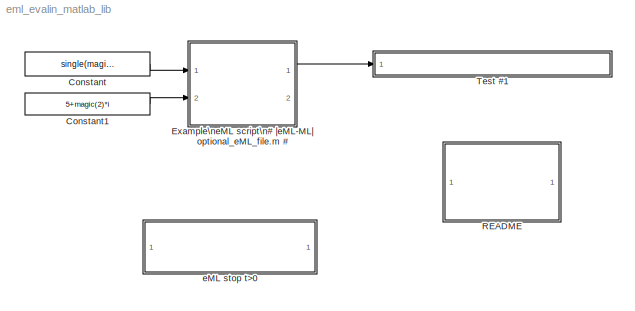
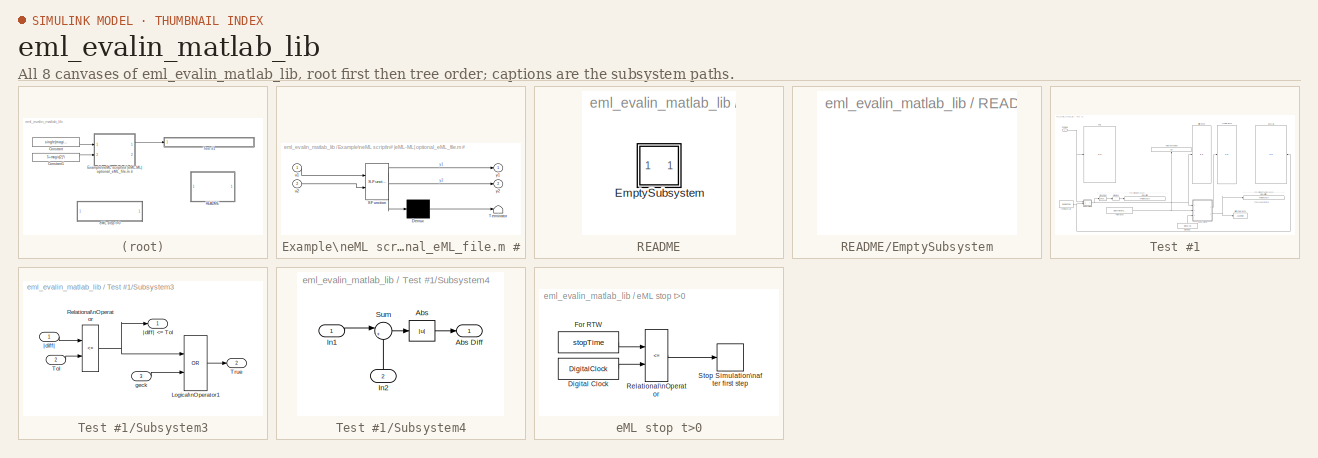
[diagram: thumbnail index - all 8 canvases of the model, root first then tree order]
MODEL eml_evalin_matlab_lib
KIND library
BLOCK [Constant] Constant
  Value = single(magic(4))
BLOCK [Constant] Constant1
  Value = 5+magic(2)*i
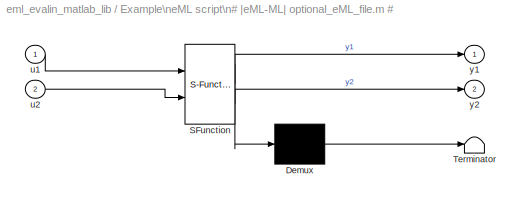
BLOCK [SubSystem] Example\neML script\n# |eML-ML| optional_eML_file.m #
  MaskDescription = Stateflow diagram
  MaskDisplay = disp('passthrough');
  MaskIconFrame = on
  MaskIconOpaque = off
  MaskIconRotate = none
  MaskIconUnits = autoscale
  MaskSelfModifiable = on
  MaskType = Stateflow
  MinAlgLoopOccurrences = off
  Ports = [2, 2]
  PropExecContextAcrossSSBoundary = on
  RTWSystemCode = Auto
  TreatAsAtomicUnit = off
BLOCK [Demux] Example\neML script\n# |eML-ML| optional_eML_file.m #/ Demux 
  Outputs = 1
  Ports = [1, 1]
BLOCK [S-Function] Example\neML script\n# |eML-ML| optional_eML_file.m #/ SFunction 
  FunctionName = sf_sfun
  PortCounts = [2 3]
  Ports = [2, 3]
  Tag = Stateflow S-Function eml_evalin_matlab_lib 2
BLOCK [Terminator] Example\neML script\n# |eML-ML| optional_eML_file.m #/ Terminator 
BLOCK [Inport] Example\neML script\n# |eML-ML| optional_eML_file.m #/u1
  IconDisplay = Port number
  LatchInput = off
  Port = 1
BLOCK [Inport] Example\neML script\n# |eML-ML| optional_eML_file.m #/u2
  IconDisplay = Port number
  LatchInput = off
  Port = 2
BLOCK [Outport] Example\neML script\n# |eML-ML| optional_eML_file.m #/y1
  BusOutputAsStruct = off
  IconDisplay = Port number
BLOCK [Outport] Example\neML script\n# |eML-ML| optional_eML_file.m #/y2
  BusOutputAsStruct = off
  IconDisplay = Port number
  Port = 2
BLOCK [SubSystem] README
  CopyFcn = docblock('breaklink',gcb);
  DeleteFcn = docblock('close_document',gcb);
  MaskCallbackString = |
  MaskDescription = Use this block to save long descriptive text with the model.  Double-clicking the block will open an editor.
  MaskDisplay = plot([.8 0 0 1 1 .8 .8 1],[1 1 0 0 .8 1 .8 .8]);\ntext(.5,.5,'DOC','horizontalalignment','center');\n
  MaskEnableString = on,on
  MaskIconFrame = off
  MaskIconOpaque = on
  MaskIconRotate = none
  MaskIconUnits = autoscale
  MaskPromptString = E Coder Flag|Document Type
  MaskStyleString = edit,popup(Text|RTF|HTML)
  MaskTabNameString = ,
  MaskToolTipString = on,on
  MaskTunableValueString = off,off
  MaskType = DocBlock
  MaskValueString = |Text
  MaskVarAliasString = ,
  MaskVariables = ECoderFlag=&1;DocumentType=&2;
  MaskVisibilityString = on,off
  MinAlgLoopOccurrences = off
  OpenFcn = docblock('edit_document',gcb);
  Ports = []
  PreSaveFcn = docblock('save_document',gcb);
  PropExecContextAcrossSSBoundary = on
  RTWSystemCode = Auto
  TreatAsAtomicUnit = off
BLOCK [SubSystem] README/EmptySubsystem
  MinAlgLoopOccurrences = off
  Ports = []
  PropExecContextAcrossSSBoundary = on
  RTWSystemCode = Auto
  TreatAsAtomicUnit = off
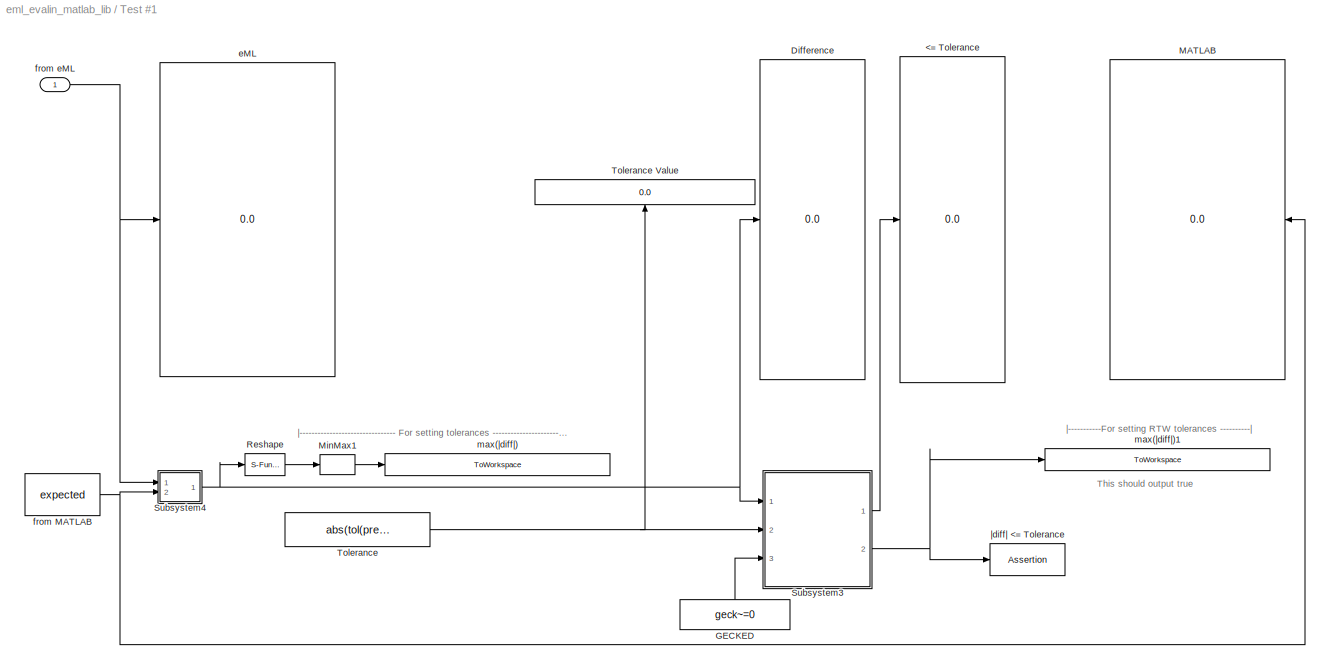
BLOCK [SubSystem] Test #1
  InitFcn = set_param(gcb,'BackgroundColor','orange');             \n                                                       \n                                                       \nif(exist('DO_EML_SINGLE', 'var') && DO_EML_SINGLE == 1)\n    set_param(gcb, 'precision', '2');                  \nelse                                                   \n    set_param(gcb, 'precision', '1');                  \ne...<+56ch>
  MaskCallbackString = |||||||||
  MaskDisplay = disp(sf('Private','eml_evalin_matlab','icon',tol,geck))
  MaskEnableString = on,on,on,on,on,on,on,on,on,on
  MaskIconFrame = on
  MaskIconOpaque = on
  MaskIconRotate = none
  MaskIconUnits = autoscale
  MaskInitialization = tol = sf('Private','eml_evalin_matlab','tol_calc',tolPCWIN,tolGLNX86,tolSOL2,tolMAC);\n
  MaskPromptString = |||||Tolerance [double single] (Inf disables assertion)|GLNX86 Tolerance override|SOL2 Tolerance override|MAC Tolerance override|Geck (non-zero value disables assertion)
  MaskSelfModifiable = on
  MaskStyleString = edit,edit,edit,edit,edit,edit,edit,edit,edit,edit
  MaskTabNameString = ,,,,,,,,,
  MaskToolTipString = on,on,on,on,on,on,on,on,on,on
  MaskTunableValueString = off,off,off,off,off,off,off,off,off,off
  MaskType = |eML-ML| <= Tol
  MaskValueString = |\"eml_evalin_matlab_lib/passthrough.y1 in eML Script\"(#27)|eml_evalin_matlab_lib/Example\neML script\n## eML EVALIN MATLAB ##|0|0|[1,1]|[1,1]|[1,1]|[1,1]|0
  MaskVarAliasString = ,,,,,,,,,
  MaskVariables = expected=@1;emlSource=@2;emlBlock=@3;tol=@4;precision=@5;tolPCWIN=@6;tolGLNX86=&7;tolSOL2=&8;tolMAC=&9;geck=@10;
  MaskVisibilityString = off,off,off,off,off,on,on,on,on,on
  MinAlgLoopOccurrences = off
  Ports = [1]
  PropExecContextAcrossSSBoundary = on
  RTWSystemCode = Auto
  StopFcn = set_param(gcb,'BackgroundColor','cyan');
  TreatAsAtomicUnit = off
BLOCK [Display] Test #1/<= Tolerance
  Decimation = 1
  Ports = [1]
BLOCK [Display] Test #1/Difference
  Decimation = 1
  Ports = [1]
BLOCK [Constant] Test #1/GECKED
  Value = geck~=0
BLOCK [Display] Test #1/MATLAB
  Decimation = 1
  Format = long
  Ports = [1]
BLOCK [MinMax] Test #1/MinMax1
  Function = max
  Ports = [1, 1]
BLOCK [S-Function] Test #1/Reshape
  DialogController = Simulink.DDGSource
  FunctionName = sreshape
  MaskCallbackString = reshapemask(gcb,'cbDimensionality')|
  MaskDescription = Change the dimensions of a vector or matrix input signal. Output\n - a one-dimensional array (vector), \n - a column vector (Mx1 matrix), \n - a row vector (1xN matrix), or \n - a matrix or vector with specified dimensions, e.g., [M, N] or [W].
  MaskDisplay = disp('U( : )')
  MaskEnableString = on,off
  MaskIconFrame = on
  MaskIconOpaque = on
  MaskIconRotate = none
  MaskIconUnits = normalized
  MaskInitialization = s = reshapemask(gcb,'init');
  MaskPromptString = Output dimensionality:|Output dimensions:
  MaskSelfModifiable = on
  MaskStyleString = popup(1-D array|Column vector|Row vector|Customize),edit
  MaskTabNameString = ,
  MaskToolTipString = on,on
  MaskTunableValueString = on,on
  MaskType = Reshape
  MaskValueString = 1-D array|[1,1]
  MaskVarAliasString = ,
  MaskVariables = OutputDimensionality=@1;OutputDimensions=@2;
  MaskVisibilityString = on,on
  Parameters = OutputDimensionality, OutputDimensions
  Ports = [1, 1]
BLOCK [SubSystem] Test #1/Subsystem3
  MinAlgLoopOccurrences = off
  Ports = [3, 2]
  PropExecContextAcrossSSBoundary = on
  RTWSystemCode = Auto
  TreatAsAtomicUnit = off
BLOCK [Logic] Test #1/Subsystem3/Logical\nOperator1
  AllPortsSameDT = off
  Operator = OR
  Ports = [2, 1]
BLOCK [RelationalOperator] Test #1/Subsystem3/Relational\nOperator
  InputSameDT = off
  Operator = <=
  ZeroCross = off
BLOCK [Inport] Test #1/Subsystem3/Tol
  IconDisplay = Port number
  LatchInput = off
  Port = 2
BLOCK [Outport] Test #1/Subsystem3/True
  BusOutputAsStruct = off
  IconDisplay = Port number
  Port = 2
BLOCK [Inport] Test #1/Subsystem3/geck
  IconDisplay = Port number
  LatchInput = off
  Port = 3
BLOCK [Inport] Test #1/Subsystem3/|diff|
  IconDisplay = Port number
  LatchInput = off
  Port = 1
BLOCK [Outport] Test #1/Subsystem3/|diff| <= Tol
  BusOutputAsStruct = off
  IconDisplay = Port number
BLOCK [SubSystem] Test #1/Subsystem4
  MaskDisplay = disp('|diff|')
  MaskIconFrame = on
  MaskIconOpaque = on
  MaskIconRotate = none
  MaskIconUnits = autoscale
  MinAlgLoopOccurrences = off
  Ports = [2, 1]
  PropExecContextAcrossSSBoundary = on
  RTWSystemCode = Auto
  TreatAsAtomicUnit = off
BLOCK [Abs] Test #1/Subsystem4/Abs
BLOCK [Outport] Test #1/Subsystem4/Abs Diff
  BusOutputAsStruct = off
  IconDisplay = Port number
BLOCK [Inport] Test #1/Subsystem4/In1
  IconDisplay = Port number
  LatchInput = off
  Port = 1
BLOCK [Inport] Test #1/Subsystem4/In2
  IconDisplay = Port number
  LatchInput = off
  Port = 2
BLOCK [Sum] Test #1/Subsystem4/Sum
  IconShape = round
  InputSameDT = off
  Inputs = |+-
  OutDataTypeMode = Inherit via internal rule
  Ports = [2, 1]
BLOCK [Constant] Test #1/Tolerance
  Value = abs(tol(precision))
BLOCK [Display] Test #1/Tolerance Value
  Decimation = 1
  Format = long
  Ports = [1]
BLOCK [Display] Test #1/eML
  Decimation = 1
  Format = long
  Ports = [1]
BLOCK [Constant] Test #1/from MATLAB
  Value = expected
  VectorParams1D = off
BLOCK [Inport] Test #1/from eML
  IconDisplay = Port number
  LatchInput = off
  Port = 1
BLOCK [ToWorkspace] Test #1/max(|diff|)
  InitFcn = \nif(exist('SET_TOL', 'var') & SET_TOL==1)                                                                                                                                                                    \nevalin('base',  ['if(~exist(''max_' strrep(strrep(strrep(gcs, '/', '_'), ' ', '_'), '#', '_') '_p1'')), ' 'max_' strrep(strrep(strrep(gcs, '/', '_'), ' ', '_'), '#', '_') '_p1.signals.values =...<+2074ch>
  MaxDataPoints = inf
  SampleTime = -1
  SaveFormat = Structure
  StopFcn = if(exist('SET_TOL', 'var') & SET_TOL==1)                                                                                                                                                                                                                                              \n                                                                                                                        ...<+7160ch>
  VariableName = max_AddSubMulDiv_test_sub_Test__1_p
BLOCK [ToWorkspace] Test #1/max(|diff|)1
  InitFcn = \nset_param(gcb, 'variableName', ['assert_' strrep(strrep(strrep(gcs, '/', '_'), ' ', '_'), '#', '_') '_p' get_param(gcs, 'precision')]);\n                                                                                                                                       \n                                                                                                                            ...<+287ch>
  MaxDataPoints = inf
  SampleTime = -1
  SaveFormat = Structure
  StopFcn = if(exist('SET_TOL', 'var') & SET_TOL==1)                                                                                                                                                                                                                                              \nset_param(gcs, ['tol' upper(computer)], ['[' num2str(eval(['max_' strrep(strrep(strrep(gcs, '/', '_'), ' ', '_'), '#', '...<+440ch>
  VariableName = assert_AddSubMulDiv_test_sub_Test__1_p
BLOCK [Assertion] Test #1/|diff| <= Tolerance
  AssertionFailFcn = sf('Private','eml_evalin_matlab','failure')
  Enabled = off
BLOCK [SubSystem] eML stop t>0
  InitFcn = set_param(gcb,'BackgroundColor','orange');
  MaskCallbackString = ||
  MaskDescription = %disp(sf('Private','eml_evalin_matlab','eMLstop'));
  MaskDisplay = disp('Double-click here first');
  MaskEnableString = on,on,on
  MaskIconFrame = on
  MaskIconOpaque = on
  MaskIconRotate = none
  MaskIconUnits = autoscale
  MaskPromptString = eML Evalin Mode|Stop Time (s)|Rebuild Everytime
  MaskStyleString = popup(Verbose|InBaT|Silent),edit,checkbox
  MaskTabNameString = ,,
  MaskToolTipString = on,on,on
  MaskTunableValueString = off,off,off
  MaskType = eML STOP at T==?
  MaskValueString = Verbose|0|on
  MaskVarAliasString = ,,
  MaskVariables = evalinMode=&1;stopTime=@2;rebuildAll=&3;
  MaskVisibilityString = on,on,on
  MinAlgLoopOccurrences = off
  OpenFcn = eml_do_selective_run;
  Ports = []
  PropExecContextAcrossSSBoundary = on
  RTWSystemCode = Auto
  StartFcn = eml_do_selective_run('close');
  StopFcn = set_param(gcb,'BackgroundColor','cyan');
  Tag = eML_evalin_testController
  TreatAsAtomicUnit = off
BLOCK [DigitalClock] eML stop t>0/Digital Clock
BLOCK [Constant] eML stop t>0/For RTW
  Value = stopTime
BLOCK [RelationalOperator] eML stop t>0/Relational\nOperator
  InputSameDT = off
  Operator = <=
BLOCK [Stop] eML stop t>0/Stop Simulation\nafter first step
ANNOTATION Test #1: This should output true
ANNOTATION Test #1: |-------------------------------- For setting tolerances -----------------------------|
ANNOTATION Test #1: |-----------For setting RTW tolerances ----------|
LINE Constant1:1 -> Example\neML script\n# |eML-ML| optional_eML_file.m #:2
LINE Constant:1 -> Example\neML script\n# |eML-ML| optional_eML_file.m #:1
LINE Example\neML script\n# |eML-ML| optional_eML_file.m #/ Demux :1 -> Example\neML script\n# |eML-ML| optional_eML_file.m #/ Terminator :1
LINE Example\neML script\n# |eML-ML| optional_eML_file.m #/ SFunction :1 -> Example\neML script\n# |eML-ML| optional_eML_file.m #/ Demux :1
LINE Example\neML script\n# |eML-ML| optional_eML_file.m #/ SFunction :2 -> Example\neML script\n# |eML-ML| optional_eML_file.m #/y1:1
LINE Example\neML script\n# |eML-ML| optional_eML_file.m #/ SFunction :3 -> Example\neML script\n# |eML-ML| optional_eML_file.m #/y2:1
LINE Example\neML script\n# |eML-ML| optional_eML_file.m #/u1:1 -> Example\neML script\n# |eML-ML| optional_eML_file.m #/ SFunction :1
LINE Example\neML script\n# |eML-ML| optional_eML_file.m #/u2:1 -> Example\neML script\n# |eML-ML| optional_eML_file.m #/ SFunction :2
LINE Example\neML script\n# |eML-ML| optional_eML_file.m #:1 -> Test #1:1
LINE Test #1/GECKED:1 -> Test #1/Subsystem3:3
LINE Test #1/MinMax1:1 -> Test #1/max(|diff|):1
LINE Test #1/Reshape:1 -> Test #1/MinMax1:1
LINE Test #1/Subsystem3/Logical\nOperator1:1 -> Test #1/Subsystem3/True:1
NET Test #1/Subsystem3/Relational\nOperator:1 -> Test #1/Subsystem3/Logical\nOperator1:1, Test #1/Subsystem3/|diff| <= Tol:1
LINE Test #1/Subsystem3/Tol:1 -> Test #1/Subsystem3/Relational\nOperator:2
LINE Test #1/Subsystem3/geck:1 -> Test #1/Subsystem3/Logical\nOperator1:2
LINE Test #1/Subsystem3/|diff|:1 -> Test #1/Subsystem3/Relational\nOperator:1
LINE Test #1/Subsystem3:1 -> Test #1/<= Tolerance:1
NET Test #1/Subsystem3:2 -> Test #1/max(|diff|)1:1, Test #1/|diff| <= Tolerance:1
LINE Test #1/Subsystem4/Abs:1 -> Test #1/Subsystem4/Abs Diff:1
LINE Test #1/Subsystem4/In1:1 -> Test #1/Subsystem4/Sum:1
LINE Test #1/Subsystem4/In2:1 -> Test #1/Subsystem4/Sum:2
LINE Test #1/Subsystem4/Sum:1 -> Test #1/Subsystem4/Abs:1
NET Test #1/Subsystem4:1 -> Test #1/Difference:1, Test #1/Reshape:1, Test #1/Subsystem3:1
NET Test #1/Tolerance:1 -> Test #1/Subsystem3:2, Test #1/Tolerance Value:1
NET Test #1/from MATLAB:1 -> Test #1/MATLAB:1, Test #1/Subsystem4:2
NET Test #1/from eML:1 -> Test #1/Subsystem4:1, Test #1/eML:1
LINE eML stop t>0/Digital Clock:1 -> eML stop t>0/Relational\nOperator:2
LINE eML stop t>0/For RTW:1 -> eML stop t>0/Relational\nOperator:1
LINE eML stop t>0/Relational\nOperator:1 -> eML stop t>0/Stop Simulation\nafter first step:1
note: NET lines group one-source signal fan-out (src -> all destinations, sorted); 1:1 wires keep LINE
CHART Example\neML script\n# |eML-ML| optional_eML_file.m # states=1 transitions=1
  STATE_LABEL 'eML_blk_kernel()'
